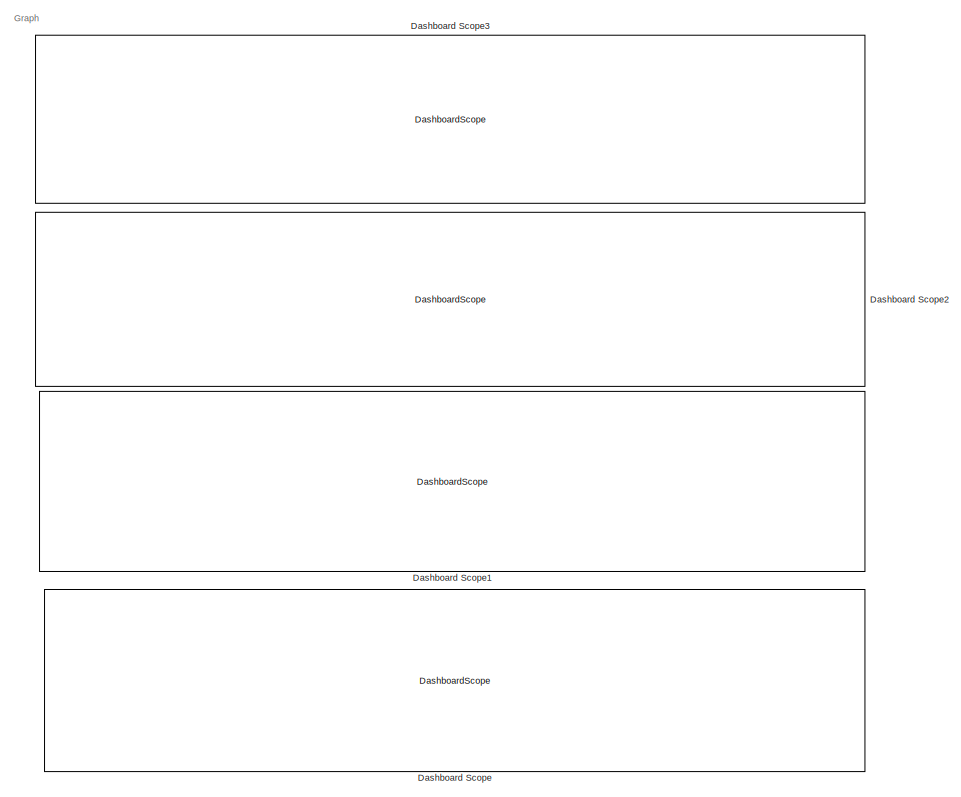
[diagram: root canvas - part 1/2, right side, full height]
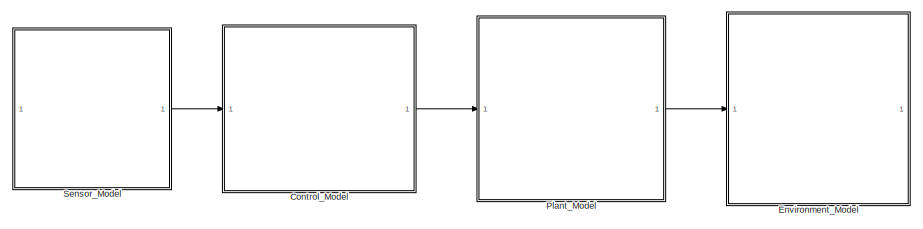
[diagram: root canvas - part 2/2, middle left region]
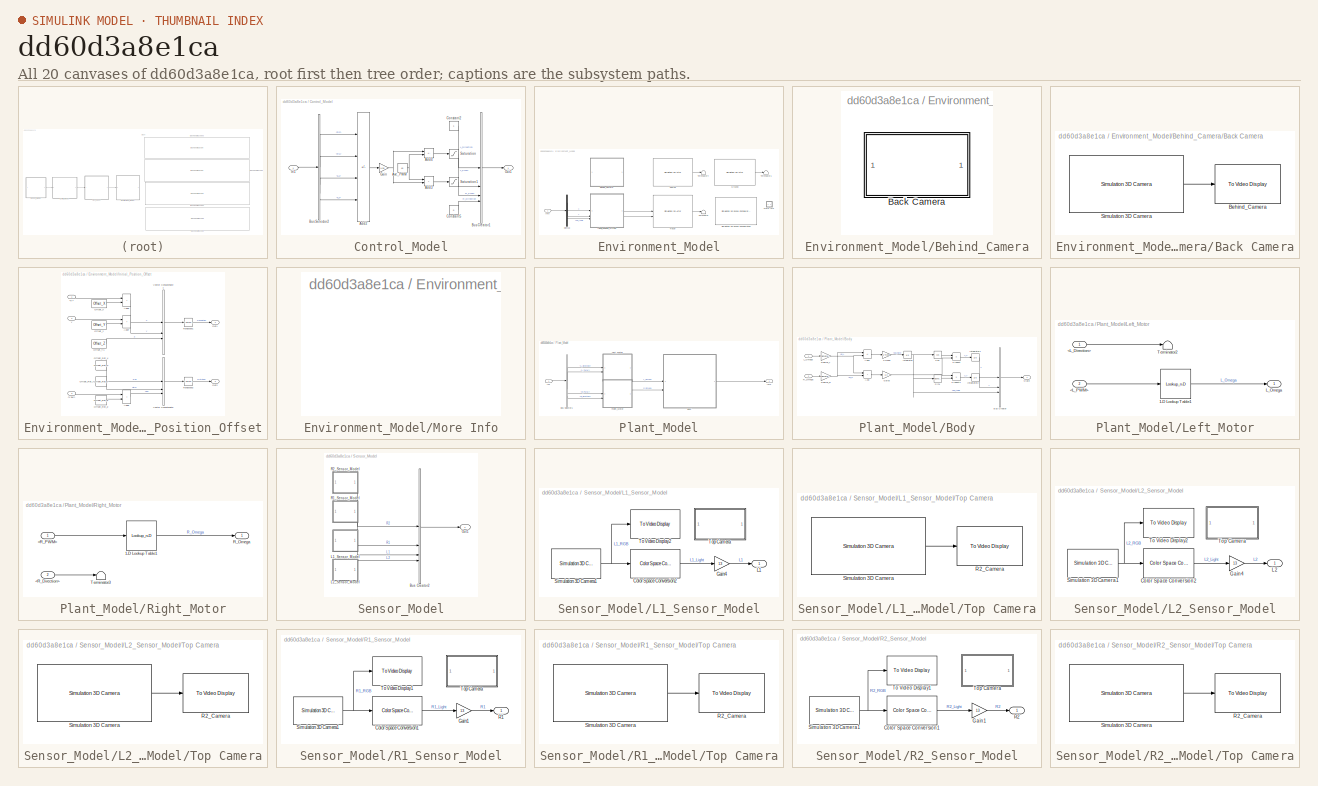
[diagram: thumbnail index - all 20 canvases of the model, root first then tree order]
MODEL slx_dd60d3a8e1ca
KIND model
CONFIG AbsTol = auto
CONFIG EnableMultiTasking = off
CONFIG FixedStep = 0.001
CONFIG MaxStep = auto
CONFIG MinStep = auto
CONFIG RelTol = 1e-3
CONFIG SampleTimeConstraint = Unconstrained
CONFIG SolverName = FixedStepAuto
CONFIG StartTime = 0
CONFIG StopTime = inf
BLOCK [SubSystem] Control_Model
BLOCK [Sum] Control_Model/Add2
  IconShape = rectangular
  Inputs = ++--
  OutDataTypeStr = double
BLOCK [Sum] Control_Model/Add3
  IconShape = rectangular
BLOCK [Sum] Control_Model/Add4
  IconShape = rectangular
  Inputs = -+
  NameLocation = top
BLOCK [Constant] Control_Model/Ave_PWM
  Value = 40
BLOCK [BusCreator] Control_Model/Bus Creator1
  DisplayOption = bar
  InheritFromInputs = on
  Inputs = 4
BLOCK [BusSelector] Control_Model/Bus Selector2
  OutputSignals = R2,R1,L1,L2
BLOCK [Constant] Control_Model/Constant2
BLOCK [Constant] Control_Model/Constant5
  Value = 0
BLOCK [Gain] Control_Model/Gain
  Gain = 1/90
BLOCK [Inport] Control_Model/In1
BLOCK [Outport] Control_Model/Out1
BLOCK [Saturate] Control_Model/Saturation
  LowerLimit = 0
  UpperLimit = 99
BLOCK [Saturate] Control_Model/Saturation1
  LowerLimit = 0
  UpperLimit = 99
BLOCK [DashboardScope] Dashboard Scope
  TickLabels = T-Axis
  Ymax = 3200
  Ymin = 0
BLOCK [DashboardScope] Dashboard Scope1
  TickLabels = T-Axis
  Ymax = 3200
  Ymin = 0
BLOCK [DashboardScope] Dashboard Scope2
  TickLabels = T-Axis
  Ymax = 3200
  Ymin = 0
BLOCK [DashboardScope] Dashboard Scope3
  TickLabels = T-Axis
  Ymax = 3200
  Ymin = 0
BLOCK [SubSystem] Environment_Model
BLOCK [SubSystem] Environment_Model/Behind_Camera
BLOCK [SubSystem] Environment_Model/Behind_Camera/Back Camera
BLOCK [Reference] Environment_Model/Behind_Camera/Back Camera/Behind_Camera  REF=visionsinks/To Video Display
  SourceBlock = visionsinks/To Video Display
  SourceType = To Video Display
BLOCK [Reference] Environment_Model/Behind_Camera/Back Camera/Simulation 3D Camera  REF=sim3dcameralib/Simulation 3D Camera
  LibrarySourceBlock = Simulation 3D Camera
  Priority = 1
  SourceBlock = sim3dcameralib/Simulation 3D Camera
  SourceType = Simulation 3D Camera
BLOCK [Reference] Environment_Model/Course  REF=sim3dlib/Simulation 3D Actor
  LibrarySourceBlock = sl3dlib/Simulation 3D/Simulation 3D Actor
  SourceBlock = sim3dlib/Simulation 3D Actor
  SourceType = Simulation 3D Actor
BLOCK [Demux] Environment_Model/Demux
  Outputs = 3
BLOCK [Reference] Environment_Model/Ground  REF=sim3dlib/Simulation 3D Actor
  LibrarySourceBlock = sl3dlib/Simulation 3D/Simulation 3D Actor
  SourceBlock = sim3dlib/Simulation 3D Actor
  SourceType = Simulation 3D Actor
BLOCK [Inport] Environment_Model/Info
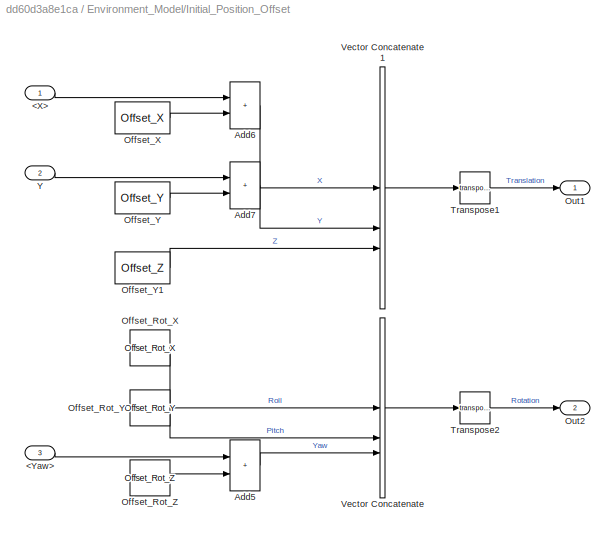
BLOCK [SubSystem] Environment_Model/Initial_Position_Offset
BLOCK [Inport] Environment_Model/Initial_Position_Offset/<X>
BLOCK [Inport] Environment_Model/Initial_Position_Offset/<Yaw>
  Port = 3
BLOCK [Sum] Environment_Model/Initial_Position_Offset/Add5
  IconShape = rectangular
BLOCK [Sum] Environment_Model/Initial_Position_Offset/Add6
  IconShape = rectangular
BLOCK [Sum] Environment_Model/Initial_Position_Offset/Add7
  IconShape = rectangular
BLOCK [Constant] Environment_Model/Initial_Position_Offset/Offset_Rot_X
  Value = Offset_Rot_X
BLOCK [Constant] Environment_Model/Initial_Position_Offset/Offset_Rot_Y
  Value = Offset_Rot_Y
BLOCK [Constant] Environment_Model/Initial_Position_Offset/Offset_Rot_Z
  Value = Offset_Rot_Z
BLOCK [Constant] Environment_Model/Initial_Position_Offset/Offset_X
  Value = Offset_X
BLOCK [Constant] Environment_Model/Initial_Position_Offset/Offset_Y
  Value = Offset_Y
BLOCK [Constant] Environment_Model/Initial_Position_Offset/Offset_Y1
  Value = Offset_Z
BLOCK [Outport] Environment_Model/Initial_Position_Offset/Out1
BLOCK [Outport] Environment_Model/Initial_Position_Offset/Out2
  Port = 2
BLOCK [Math] Environment_Model/Initial_Position_Offset/Transpose1
  Operator = transpose
BLOCK [Math] Environment_Model/Initial_Position_Offset/Transpose2
  Operator = transpose
BLOCK [Concatenate] Environment_Model/Initial_Position_Offset/Vector Concatenate
  NumInputs = 3
BLOCK [Concatenate] Environment_Model/Initial_Position_Offset/Vector Concatenate1
  NumInputs = 3
BLOCK [Inport] Environment_Model/Initial_Position_Offset/Y
  Port = 2
BLOCK [SubSystem] Environment_Model/More Info
  OpenFcn = showExample('sl3d/CreateActorSTLFileExample')
BLOCK [Reference] Environment_Model/Simulation 3D Scene Configuration  REF=sim3dlib/Simulation 3D Scene Configuration
  LibrarySourceBlock = sl3dlib/Simulation 3D/Simulation 3D Scene Configuration
  Priority = 0
  SourceBlock = sim3dlib/Simulation 3D Scene Configuration
  SourceType = Simulation 3D Scene Configuration
BLOCK [Terminator] Environment_Model/Terminator
BLOCK [Terminator] Environment_Model/Terminator1
BLOCK [Terminator] Environment_Model/Terminator4
BLOCK [Reference] Environment_Model/Tracer  REF=sim3dlib/Simulation 3D Actor
  LibrarySourceBlock = sl3dlib/Simulation 3D/Actors/Simulation 3D Actor
  Priority = 1
  SourceBlock = sim3dlib/Simulation 3D Actor
  SourceType = Simulation 3D Actor
BLOCK [SubSystem] Plant_Model
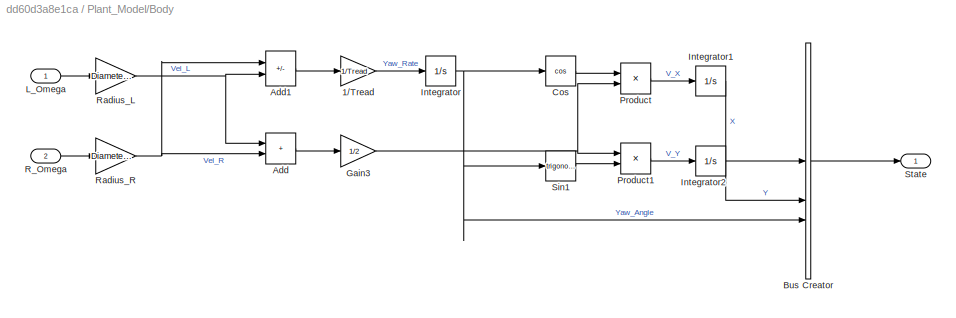
BLOCK [SubSystem] Plant_Model/Body
BLOCK [Gain] Plant_Model/Body/1//Tread
  Gain = 1/Tread
BLOCK [Sum] Plant_Model/Body/Add
  IconShape = rectangular
BLOCK [Sum] Plant_Model/Body/Add1
  IconShape = rectangular
  Inputs = -+
BLOCK [BusCreator] Plant_Model/Body/Bus Creator
  DisplayOption = bar
  InheritFromInputs = on
  Inputs = 3
BLOCK [Trigonometry] Plant_Model/Body/Cos
  Operator = cos
BLOCK [Gain] Plant_Model/Body/Gain3
  Gain = 1/2
BLOCK [Integrator] Plant_Model/Body/Integrator
BLOCK [Integrator] Plant_Model/Body/Integrator1
BLOCK [Integrator] Plant_Model/Body/Integrator2
BLOCK [Inport] Plant_Model/Body/L_Omega
BLOCK [Product] Plant_Model/Body/Product
BLOCK [Product] Plant_Model/Body/Product1
BLOCK [Inport] Plant_Model/Body/R_Omega
  Port = 2
BLOCK [Gain] Plant_Model/Body/Radius_L
  Gain = Diameter_L/2
BLOCK [Gain] Plant_Model/Body/Radius_R
  Gain = Diameter_R/2
BLOCK [Trigonometry] Plant_Model/Body/Sin1
BLOCK [Outport] Plant_Model/Body/State
BLOCK [BusSelector] Plant_Model/Bus Selector1
  OutputSignals = L_Direction,L_PWM,R_PWM,R_Direction
BLOCK [Inport] Plant_Model/In1
BLOCK [Outport] Plant_Model/Info
BLOCK [SubSystem] Plant_Model/Left_Motor
  NameLocation = top
BLOCK [Lookup_n-D] Plant_Model/Left_Motor/1-D Lookup Table1
  BreakpointsForDimension1 = [-100:20:100]
  InputPortMap = u0
  InternalRulePriority = Speed
  NumberOfTableDimensions = 1
  RndMeth = Simplest
  Table = tanh([-5:5])*50
BLOCK [Inport] Plant_Model/Left_Motor/<L_Direction>
BLOCK [Inport] Plant_Model/Left_Motor/<L_PWM>
  Port = 2
BLOCK [Outport] Plant_Model/Left_Motor/L_Omega
BLOCK [Terminator] Plant_Model/Left_Motor/Terminator2
BLOCK [SubSystem] Plant_Model/Right_Motor
BLOCK [Lookup_n-D] Plant_Model/Right_Motor/1-D Lookup Table1
  BreakpointsForDimension1 = [-100:20:100]
  InputPortMap = u0
  InternalRulePriority = Speed
  NumberOfTableDimensions = 1
  RndMeth = Simplest
  Table = tanh([-5:5])*50
BLOCK [Inport] Plant_Model/Right_Motor/<R_Direction>
  Port = 2
BLOCK [Inport] Plant_Model/Right_Motor/<R_PWM>
BLOCK [Outport] Plant_Model/Right_Motor/R_Omega
BLOCK [Terminator] Plant_Model/Right_Motor/Terminator3
BLOCK [SubSystem] Sensor_Model
BLOCK [BusCreator] Sensor_Model/Bus Creator2
  DisplayOption = bar
  InheritFromInputs = on
  Inputs = 4
BLOCK [SubSystem] Sensor_Model/L1_Sensor_Model
BLOCK [Reference] Sensor_Model/L1_Sensor_Model/Color Space Conversion2  REF=visionconversions/Color Space
 Conversion
  SourceBlock = visionconversions/Color Space\n Conversion
  SourceType = Color Space Conversion
BLOCK [Gain] Sensor_Model/L1_Sensor_Model/Gain4
  Gain = 13
BLOCK [Outport] Sensor_Model/L1_Sensor_Model/L1
BLOCK [Reference] Sensor_Model/L1_Sensor_Model/Simulation 3D Camera1  REF=sim3dcameralib/Simulation 3D Camera
  LibrarySourceBlock = Simulation 3D Camera
  Priority = 1
  SourceBlock = sim3dcameralib/Simulation 3D Camera
  SourceType = Simulation 3D Camera
BLOCK [Reference] Sensor_Model/L1_Sensor_Model/To Video Display2  REF=visionsinks/To Video Display
  Commented = on
  SourceBlock = visionsinks/To Video Display
  SourceType = To Video Display
BLOCK [SubSystem] Sensor_Model/L1_Sensor_Model/Top Camera
  Commented = on
BLOCK [Reference] Sensor_Model/L1_Sensor_Model/Top Camera/R2_Camera  REF=visionsinks/To Video Display
  SourceBlock = visionsinks/To Video Display
  SourceType = To Video Display
BLOCK [Reference] Sensor_Model/L1_Sensor_Model/Top Camera/Simulation 3D Camera  REF=sim3dcameralib/Simulation 3D Camera
  LibrarySourceBlock = Simulation 3D Camera
  Priority = 1
  SourceBlock = sim3dcameralib/Simulation 3D Camera
  SourceType = Simulation 3D Camera
BLOCK [SubSystem] Sensor_Model/L2_Sensor_Model
BLOCK [Reference] Sensor_Model/L2_Sensor_Model/Color Space Conversion2  REF=visionconversions/Color Space
 Conversion
  SourceBlock = visionconversions/Color Space\n Conversion
  SourceType = Color Space Conversion
BLOCK [Gain] Sensor_Model/L2_Sensor_Model/Gain4
  Gain = 13
BLOCK [Outport] Sensor_Model/L2_Sensor_Model/L2
BLOCK [Reference] Sensor_Model/L2_Sensor_Model/Simulation 3D Camera1  REF=sim3dcameralib/Simulation 3D Camera
  LibrarySourceBlock = Simulation 3D Camera
  Priority = 1
  SourceBlock = sim3dcameralib/Simulation 3D Camera
  SourceType = Simulation 3D Camera
BLOCK [Reference] Sensor_Model/L2_Sensor_Model/To Video Display2  REF=visionsinks/To Video Display
  Commented = on
  SourceBlock = visionsinks/To Video Display
  SourceType = To Video Display
BLOCK [SubSystem] Sensor_Model/L2_Sensor_Model/Top Camera
  Commented = on
BLOCK [Reference] Sensor_Model/L2_Sensor_Model/Top Camera/R2_Camera  REF=visionsinks/To Video Display
  SourceBlock = visionsinks/To Video Display
  SourceType = To Video Display
BLOCK [Reference] Sensor_Model/L2_Sensor_Model/Top Camera/Simulation 3D Camera  REF=sim3dcameralib/Simulation 3D Camera
  LibrarySourceBlock = Simulation 3D Camera
  Priority = 1
  SourceBlock = sim3dcameralib/Simulation 3D Camera
  SourceType = Simulation 3D Camera
BLOCK [Outport] Sensor_Model/Out1
BLOCK [SubSystem] Sensor_Model/R1_Sensor_Model
BLOCK [Reference] Sensor_Model/R1_Sensor_Model/Color Space Conversion1  REF=visionconversions/Color Space
 Conversion
  SourceBlock = visionconversions/Color Space\n Conversion
  SourceType = Color Space Conversion
BLOCK [Gain] Sensor_Model/R1_Sensor_Model/Gain1
  Gain = 13
BLOCK [Outport] Sensor_Model/R1_Sensor_Model/R1
BLOCK [Reference] Sensor_Model/R1_Sensor_Model/Simulation 3D Camera1  REF=sim3dcameralib/Simulation 3D Camera
  LibrarySourceBlock = Simulation 3D Camera
  Priority = 1
  SourceBlock = sim3dcameralib/Simulation 3D Camera
  SourceType = Simulation 3D Camera
BLOCK [Reference] Sensor_Model/R1_Sensor_Model/To Video Display1  REF=visionsinks/To Video Display
  Commented = on
  SourceBlock = visionsinks/To Video Display
  SourceType = To Video Display
BLOCK [SubSystem] Sensor_Model/R1_Sensor_Model/Top Camera
  Commented = on
BLOCK [Reference] Sensor_Model/R1_Sensor_Model/Top Camera/R2_Camera  REF=visionsinks/To Video Display
  SourceBlock = visionsinks/To Video Display
  SourceType = To Video Display
BLOCK [Reference] Sensor_Model/R1_Sensor_Model/Top Camera/Simulation 3D Camera  REF=sim3dcameralib/Simulation 3D Camera
  LibrarySourceBlock = Simulation 3D Camera
  Priority = 1
  SourceBlock = sim3dcameralib/Simulation 3D Camera
  SourceType = Simulation 3D Camera
BLOCK [SubSystem] Sensor_Model/R2_Sensor_Model
BLOCK [Reference] Sensor_Model/R2_Sensor_Model/Color Space Conversion1  REF=visionconversions/Color Space
 Conversion
  SourceBlock = visionconversions/Color Space\n Conversion
  SourceType = Color Space Conversion
BLOCK [Gain] Sensor_Model/R2_Sensor_Model/Gain1
  Gain = 13
BLOCK [Outport] Sensor_Model/R2_Sensor_Model/R2
BLOCK [Reference] Sensor_Model/R2_Sensor_Model/Simulation 3D Camera1  REF=sim3dcameralib/Simulation 3D Camera
  LibrarySourceBlock = Simulation 3D Camera
  Priority = 1
  SourceBlock = sim3dcameralib/Simulation 3D Camera
  SourceType = Simulation 3D Camera
BLOCK [Reference] Sensor_Model/R2_Sensor_Model/To Video Display1  REF=visionsinks/To Video Display
  Commented = on
  SourceBlock = visionsinks/To Video Display
  SourceType = To Video Display
BLOCK [SubSystem] Sensor_Model/R2_Sensor_Model/Top Camera
  Commented = on
BLOCK [Reference] Sensor_Model/R2_Sensor_Model/Top Camera/R2_Camera  REF=visionsinks/To Video Display
  SourceBlock = visionsinks/To Video Display
  SourceType = To Video Display
BLOCK [Reference] Sensor_Model/R2_Sensor_Model/Top Camera/Simulation 3D Camera  REF=sim3dcameralib/Simulation 3D Camera
  LibrarySourceBlock = Simulation 3D Camera
  Priority = 1
  SourceBlock = sim3dcameralib/Simulation 3D Camera
  SourceType = Simulation 3D Camera
ANNOTATION (root): Graph
LINE Control_Model/Add2:1 -> Control_Model/Gain:1
LINE Control_Model/Add3:1 -> Control_Model/Saturation1:1
LINE Control_Model/Add4:1 -> Control_Model/Saturation:1
NET Control_Model/Ave_PWM:1 -> Control_Model/Add3:1, Control_Model/Add4:2
LINE Control_Model/Bus Creator1:1 -> Control_Model/Out1:1
LINE Control_Model/Bus Selector2:1 -> Control_Model/Add2:1
LINE Control_Model/Bus Selector2:2 -> Control_Model/Add2:2
LINE Control_Model/Bus Selector2:3 -> Control_Model/Add2:3
LINE Control_Model/Bus Selector2:4 -> Control_Model/Add2:4
LINE Control_Model/Constant2:1 -> Control_Model/Bus Creator1:1
LINE Control_Model/Constant5:1 -> Control_Model/Bus Creator1:4
NET Control_Model/Gain:1 -> Control_Model/Add3:2, Control_Model/Add4:1
LINE Control_Model/In1:1 -> Control_Model/Bus Selector2:1
LINE Control_Model/Saturation1:1 -> Control_Model/Bus Creator1:3
LINE Control_Model/Saturation:1 -> Control_Model/Bus Creator1:2
LINE Control_Model:1 -> Plant_Model:1
LINE Environment_Model/Behind_Camera/Back Camera/Simulation 3D Camera:1 -> Environment_Model/Behind_Camera/Back Camera/Behind_Camera:1
LINE Environment_Model/Course:1 -> Environment_Model/Terminator4:1
LINE Environment_Model/Demux:1 -> Environment_Model/Initial_Position_Offset:1
LINE Environment_Model/Demux:2 -> Environment_Model/Initial_Position_Offset:2
LINE Environment_Model/Demux:3 -> Environment_Model/Initial_Position_Offset:3
LINE Environment_Model/Ground:1 -> Environment_Model/Terminator1:1
LINE Environment_Model/Info:1 -> Environment_Model/Demux:1
LINE Environment_Model/Initial_Position_Offset/<X>:1 -> Environment_Model/Initial_Position_Offset/Add6:1
LINE Environment_Model/Initial_Position_Offset/<Yaw>:1 -> Environment_Model/Initial_Position_Offset/Add5:1
LINE Environment_Model/Initial_Position_Offset/Add5:1 -> Environment_Model/Initial_Position_Offset/Vector Concatenate:3
LINE Environment_Model/Initial_Position_Offset/Add6:1 -> Environment_Model/Initial_Position_Offset/Vector Concatenate1:1
LINE Environment_Model/Initial_Position_Offset/Add7:1 -> Environment_Model/Initial_Position_Offset/Vector Concatenate1:2
LINE Environment_Model/Initial_Position_Offset/Offset_Rot_X:1 -> Environment_Model/Initial_Position_Offset/Vector Concatenate:1
LINE Environment_Model/Initial_Position_Offset/Offset_Rot_Y:1 -> Environment_Model/Initial_Position_Offset/Vector Concatenate:2
LINE Environment_Model/Initial_Position_Offset/Offset_Rot_Z:1 -> Environment_Model/Initial_Position_Offset/Add5:2
LINE Environment_Model/Initial_Position_Offset/Offset_X:1 -> Environment_Model/Initial_Position_Offset/Add6:2
LINE Environment_Model/Initial_Position_Offset/Offset_Y1:1 -> Environment_Model/Initial_Position_Offset/Vector Concatenate1:3
LINE Environment_Model/Initial_Position_Offset/Offset_Y:1 -> Environment_Model/Initial_Position_Offset/Add7:2
LINE Environment_Model/Initial_Position_Offset/Transpose1:1 -> Environment_Model/Initial_Position_Offset/Out1:1
LINE Environment_Model/Initial_Position_Offset/Transpose2:1 -> Environment_Model/Initial_Position_Offset/Out2:1
LINE Environment_Model/Initial_Position_Offset/Vector Concatenate1:1 -> Environment_Model/Initial_Position_Offset/Transpose1:1
LINE Environment_Model/Initial_Position_Offset/Vector Concatenate:1 -> Environment_Model/Initial_Position_Offset/Transpose2:1
LINE Environment_Model/Initial_Position_Offset/Y:1 -> Environment_Model/Initial_Position_Offset/Add7:1
LINE Environment_Model/Initial_Position_Offset:1 -> Environment_Model/Tracer:1
LINE Environment_Model/Initial_Position_Offset:2 -> Environment_Model/Tracer:2
LINE Environment_Model/Tracer:1 -> Environment_Model/Terminator:1
LINE Plant_Model/Body/1//Tread:1 -> Plant_Model/Body/Integrator:1
LINE Plant_Model/Body/Add1:1 -> Plant_Model/Body/1//Tread:1
LINE Plant_Model/Body/Add:1 -> Plant_Model/Body/Gain3:1
LINE Plant_Model/Body/Bus Creator:1 -> Plant_Model/Body/State:1
LINE Plant_Model/Body/Cos:1 -> Plant_Model/Body/Product:1
NET Plant_Model/Body/Gain3:1 -> Plant_Model/Body/Product1:1, Plant_Model/Body/Product:2
LINE Plant_Model/Body/Integrator1:1 -> Plant_Model/Body/Bus Creator:1
LINE Plant_Model/Body/Integrator2:1 -> Plant_Model/Body/Bus Creator:2
NET Plant_Model/Body/Integrator:1 -> Plant_Model/Body/Bus Creator:3, Plant_Model/Body/Cos:1, Plant_Model/Body/Sin1:1
LINE Plant_Model/Body/L_Omega:1 -> Plant_Model/Body/Radius_L:1
LINE Plant_Model/Body/Product1:1 -> Plant_Model/Body/Integrator2:1
LINE Plant_Model/Body/Product:1 -> Plant_Model/Body/Integrator1:1
LINE Plant_Model/Body/R_Omega:1 -> Plant_Model/Body/Radius_R:1
NET Plant_Model/Body/Radius_L:1 -> Plant_Model/Body/Add1:2, Plant_Model/Body/Add:1
NET Plant_Model/Body/Radius_R:1 -> Plant_Model/Body/Add1:1, Plant_Model/Body/Add:2
LINE Plant_Model/Body/Sin1:1 -> Plant_Model/Body/Product1:2
LINE Plant_Model/Body:1 -> Plant_Model/Info:1
LINE Plant_Model/Bus Selector1:1 -> Plant_Model/Left_Motor:1
LINE Plant_Model/Bus Selector1:2 -> Plant_Model/Left_Motor:2
LINE Plant_Model/Bus Selector1:3 -> Plant_Model/Right_Motor:1
LINE Plant_Model/Bus Selector1:4 -> Plant_Model/Right_Motor:2
LINE Plant_Model/In1:1 -> Plant_Model/Bus Selector1:1
LINE Plant_Model/Left_Motor/1-D Lookup Table1:1 -> Plant_Model/Left_Motor/L_Omega:1
LINE Plant_Model/Left_Motor/<L_Direction>:1 -> Plant_Model/Left_Motor/Terminator2:1
LINE Plant_Model/Left_Motor/<L_PWM>:1 -> Plant_Model/Left_Motor/1-D Lookup Table1:1
LINE Plant_Model/Left_Motor:1 -> Plant_Model/Body:1
LINE Plant_Model/Right_Motor/1-D Lookup Table1:1 -> Plant_Model/Right_Motor/R_Omega:1
LINE Plant_Model/Right_Motor/<R_Direction>:1 -> Plant_Model/Right_Motor/Terminator3:1
LINE Plant_Model/Right_Motor/<R_PWM>:1 -> Plant_Model/Right_Motor/1-D Lookup Table1:1
LINE Plant_Model/Right_Motor:1 -> Plant_Model/Body:2
LINE Plant_Model:1 -> Environment_Model:1
LINE Sensor_Model/Bus Creator2:1 -> Sensor_Model/Out1:1
LINE Sensor_Model/L1_Sensor_Model/Color Space Conversion2:1 -> Sensor_Model/L1_Sensor_Model/Gain4:1
LINE Sensor_Model/L1_Sensor_Model/Gain4:1 -> Sensor_Model/L1_Sensor_Model/L1:1
NET Sensor_Model/L1_Sensor_Model/Simulation 3D Camera1:1 -> Sensor_Model/L1_Sensor_Model/Color Space Conversion2:1, Sensor_Model/L1_Sensor_Model/To Video Display2:1
LINE Sensor_Model/L1_Sensor_Model/Top Camera/Simulation 3D Camera:1 -> Sensor_Model/L1_Sensor_Model/Top Camera/R2_Camera:1
LINE Sensor_Model/L1_Sensor_Model:1 -> Sensor_Model/Bus Creator2:3
LINE Sensor_Model/L2_Sensor_Model/Color Space Conversion2:1 -> Sensor_Model/L2_Sensor_Model/Gain4:1
LINE Sensor_Model/L2_Sensor_Model/Gain4:1 -> Sensor_Model/L2_Sensor_Model/L2:1
NET Sensor_Model/L2_Sensor_Model/Simulation 3D Camera1:1 -> Sensor_Model/L2_Sensor_Model/Color Space Conversion2:1, Sensor_Model/L2_Sensor_Model/To Video Display2:1
LINE Sensor_Model/L2_Sensor_Model/Top Camera/Simulation 3D Camera:1 -> Sensor_Model/L2_Sensor_Model/Top Camera/R2_Camera:1
LINE Sensor_Model/L2_Sensor_Model:1 -> Sensor_Model/Bus Creator2:4
LINE Sensor_Model/R1_Sensor_Model/Color Space Conversion1:1 -> Sensor_Model/R1_Sensor_Model/Gain1:1
LINE Sensor_Model/R1_Sensor_Model/Gain1:1 -> Sensor_Model/R1_Sensor_Model/R1:1
NET Sensor_Model/R1_Sensor_Model/Simulation 3D Camera1:1 -> Sensor_Model/R1_Sensor_Model/Color Space Conversion1:1, Sensor_Model/R1_Sensor_Model/To Video Display1:1
LINE Sensor_Model/R1_Sensor_Model/Top Camera/Simulation 3D Camera:1 -> Sensor_Model/R1_Sensor_Model/Top Camera/R2_Camera:1
LINE Sensor_Model/R1_Sensor_Model:1 -> Sensor_Model/Bus Creator2:2
LINE Sensor_Model/R2_Sensor_Model/Color Space Conversion1:1 -> Sensor_Model/R2_Sensor_Model/Gain1:1
LINE Sensor_Model/R2_Sensor_Model/Gain1:1 -> Sensor_Model/R2_Sensor_Model/R2:1
NET Sensor_Model/R2_Sensor_Model/Simulation 3D Camera1:1 -> Sensor_Model/R2_Sensor_Model/Color Space Conversion1:1, Sensor_Model/R2_Sensor_Model/To Video Display1:1
LINE Sensor_Model/R2_Sensor_Model/Top Camera/Simulation 3D Camera:1 -> Sensor_Model/R2_Sensor_Model/Top Camera/R2_Camera:1
LINE Sensor_Model/R2_Sensor_Model:1 -> Sensor_Model/Bus Creator2:1
LINE Sensor_Model:1 -> Control_Model:1
note: NET lines group one-source signal fan-out (src -> all destinations, sorted); 1:1 wires keep LINE
